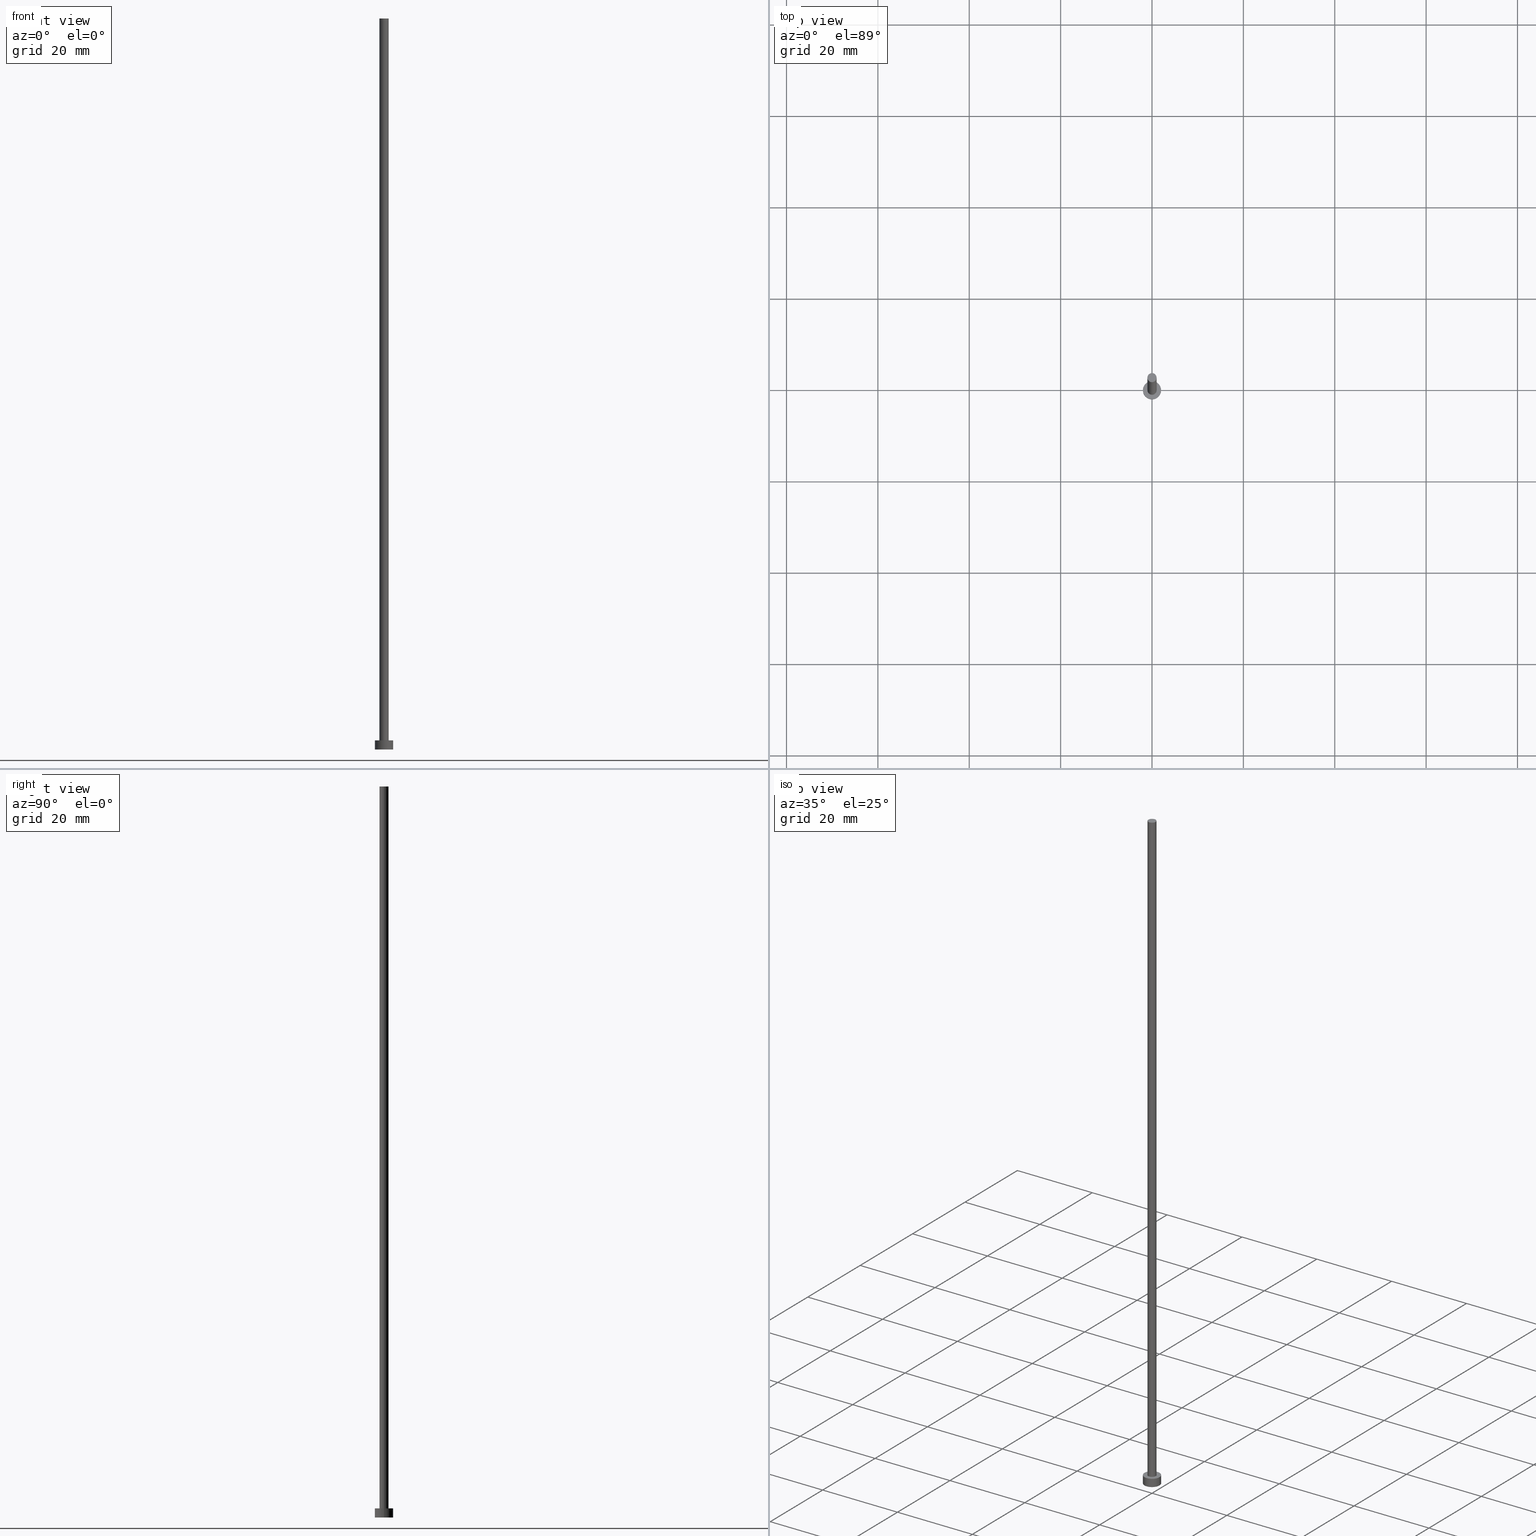
[diagram: canonical four-view strip — front | top / right | iso, engineering-drawing reading convention]
A machine part, canonical four-view strip (front | top / right | iso — engineering-drawing reading convention). The complete STEP part file that produces these views, byte-faithful:
ISO-10303-21;
HEADER;
FILE_DESCRIPTION (( 'STEP AP203' ),
    '1' );
FILE_NAME ('dfe2.STEP',
    '2023-02-13T14:55:46',
    ( '' ),
    ( '' ),
    'SwSTEP 2.0',
    'SolidWorks 2019',
    '' );
FILE_SCHEMA (( 'CONFIG_CONTROL_DESIGN' ));
ENDSEC;

DATA;
#1 = AXIS2_PLACEMENT_3D ( 'NONE', #243, #194, #80 ) ;
#2 = EDGE_CURVE ( 'NONE', #247, #150, #65, .T. ) ;
#3 = CARTESIAN_POINT ( 'NONE',  ( -1.000000000000000000, 0.000000000000000000, 160.0000000000000000 ) ) ;
#4 = EDGE_CURVE ( 'NONE', #66, #119, #205, .T. ) ;
#5 = ORIENTED_EDGE ( 'NONE', *, *, #13, .T. ) ;
#6 = DIRECTION ( 'NONE',  ( -1.000000000000000000, 0.000000000000000000, 0.000000000000000000 ) ) ;
#7 = PERSON_AND_ORGANIZATION_ROLE ( 'design_owner' ) ;
#8 = ADVANCED_FACE ( 'NONE', ( #12 ), #117, .T. ) ;
#9 = PERSON_AND_ORGANIZATION ( #94, #95 ) ;
#10 = EDGE_CURVE ( 'NONE', #150, #247, #121, .T. ) ;
#11 = VECTOR ( 'NONE', #214, 1000.000000000000000 ) ;
#12 = FACE_OUTER_BOUND ( 'NONE', #144, .T. ) ;
#13 = EDGE_CURVE ( 'NONE', #119, #66, #74, .T. ) ;
#14 = ORIENTED_EDGE ( 'NONE', *, *, #10, .F. ) ;
#15 = ORIENTED_EDGE ( 'NONE', *, *, #101, .T. ) ;
#16 = CARTESIAN_POINT ( 'NONE',  ( 0.000000000000000000, 0.000000000000000000, 2.000000000000000000 ) ) ;
#17 = EDGE_LOOP ( 'NONE', ( #18, #160 ) ) ;
#18 = ORIENTED_EDGE ( 'NONE', *, *, #251, .T. ) ;
#19 = CARTESIAN_POINT ( 'NONE',  ( -2.000000000000000000, 0.000000000000000000, 0.000000000000000000 ) ) ;
#20 = DIRECTION ( 'NONE',  ( 1.000000000000000000, 0.000000000000000000, -0.000000000000000000 ) ) ;
#21 = CC_DESIGN_APPROVAL ( #52, ( #35 ) ) ;
#22 = PLANE ( 'NONE',  #77 ) ;
#23 = EDGE_CURVE ( 'NONE', #119, #85, #122, .T. ) ;
#24 = CARTESIAN_POINT ( 'NONE',  ( 0.000000000000000000, 0.000000000000000000, 160.0000000000000000 ) ) ;
#25 = DIRECTION ( 'NONE',  ( 1.000000000000000000, 0.000000000000000000, -0.000000000000000000 ) ) ;
#26 = APPLICATION_CONTEXT ( 'configuration controlled 3d designs of mechanical parts and assemblies' ) ;
#27 = FACE_OUTER_BOUND ( 'NONE', #210, .T. ) ;
#28 = APPROVAL_ROLE ( '' ) ;
#29 = VECTOR ( 'NONE', #188, 1000.000000000000000 ) ;
#30 =( NAMED_UNIT ( * ) PLANE_ANGLE_UNIT ( ) SI_UNIT ( $, .RADIAN. ) );
#31 = EDGE_CURVE ( 'NONE', #41, #85, #173, .T. ) ;
#32 = PERSON_AND_ORGANIZATION_ROLE ( 'creator' ) ;
#33 = CC_DESIGN_PERSON_AND_ORGANIZATION_ASSIGNMENT ( #72, #7, ( #167 ) ) ;
#34 = COORDINATED_UNIVERSAL_TIME_OFFSET ( 1, 0, .AHEAD. ) ;
#35 = SECURITY_CLASSIFICATION ( '', '', #135 ) ;
#36 = EDGE_LOOP ( 'NONE', ( #14, #100 ) ) ;
#37 = DIRECTION ( 'NONE',  ( 1.000000000000000000, 0.000000000000000000, 0.000000000000000000 ) ) ;
#38 = DIRECTION ( 'NONE',  ( 1.000000000000000000, 0.000000000000000000, 0.000000000000000000 ) ) ;
#39 = APPROVAL ( #227, 'NEUR�EN�' ) ;
#40 = COORDINATED_UNIVERSAL_TIME_OFFSET ( 1, 0, .AHEAD. ) ;
#41 = VERTEX_POINT ( 'NONE', #19 ) ;
#42 = CARTESIAN_POINT ( 'NONE',  ( 0.000000000000000000, 0.000000000000000000, 2.000000000000000000 ) ) ;
#43 = ORIENTED_EDGE ( 'NONE', *, *, #2, .T. ) ;
#44 = DIRECTION ( 'NONE',  ( -1.000000000000000000, 0.000000000000000000, 0.000000000000000000 ) ) ;
#45 = CARTESIAN_POINT ( 'NONE',  ( 2.000000000000000000, 2.449293598294706414E-16, 2.000000000000000000 ) ) ;
#46 = ADVANCED_FACE ( 'NONE', ( #104 ), #178, .T. ) ;
#47 = FACE_OUTER_BOUND ( 'NONE', #161, .T. ) ;
#48 = CYLINDRICAL_SURFACE ( 'NONE', #125, 2.000000000000000000 ) ;
#49 = LOCAL_TIME ( 15, 55, 46.00000000000000000, #131 ) ;
#50 = COORDINATED_UNIVERSAL_TIME_OFFSET ( 1, 0, .AHEAD. ) ;
#51 = DIRECTION ( 'NONE',  ( 0.000000000000000000, 0.000000000000000000, 1.000000000000000000 ) ) ;
#52 = APPROVAL ( #61, 'NEUR�EN�' ) ;
#53 = PERSON_AND_ORGANIZATION_ROLE ( 'creator' ) ;
#54 = CLOSED_SHELL ( 'NONE', ( #8, #171, #90, #62, #179, #103, #46 ) ) ;
#55 = CALENDAR_DATE ( 2023, 13, 2 ) ;
#56 = FACE_BOUND ( 'NONE', #36, .T. ) ;
#57 = EDGE_CURVE ( 'NONE', #106, #139, #93, .T. ) ;
#58 = CC_DESIGN_SECURITY_CLASSIFICATION ( #35, ( #238 ) ) ;
#59 = ORIENTED_EDGE ( 'NONE', *, *, #123, .T. ) ;
#60 = AXIS2_PLACEMENT_3D ( 'NONE', #198, #200, #38 ) ;
#61 = APPROVAL_STATUS ( 'not_yet_approved' ) ;
#62 = ADVANCED_FACE ( 'NONE', ( #56, #137 ), #195, .T. ) ;
#63 = ORIENTED_EDGE ( 'NONE', *, *, #108, .T. ) ;
#64 = CARTESIAN_POINT ( 'NONE',  ( 0.000000000000000000, 0.000000000000000000, 2.000000000000000000 ) ) ;
#65 = CIRCLE ( 'NONE', #170, 1.000000000000000000 ) ;
#66 = VERTEX_POINT ( 'NONE', #245 ) ;
#67 = DIRECTION ( 'NONE',  ( 0.000000000000000000, 0.000000000000000000, 1.000000000000000000 ) ) ;
#68 = DIRECTION ( 'NONE',  ( -0.000000000000000000, -0.000000000000000000, -1.000000000000000000 ) ) ;
#69 = CIRCLE ( 'NONE', #147, 2.000000000000000000 ) ;
#70 = CYLINDRICAL_SURFACE ( 'NONE', #197, 2.000000000000000000 ) ;
#71 = CYLINDRICAL_SURFACE ( 'NONE', #189, 1.000000000000000000 ) ;
#72 = PERSON_AND_ORGANIZATION ( #94, #95 ) ;
#73 = APPROVAL_DATE_TIME ( #191, #39 ) ;
#74 = CIRCLE ( 'NONE', #142, 2.000000000000000000 ) ;
#75 = CC_DESIGN_PERSON_AND_ORGANIZATION_ASSIGNMENT ( #113, #192, ( #238 ) ) ;
#76 = APPROVAL_ROLE ( '' ) ;
#77 = AXIS2_PLACEMENT_3D ( 'NONE', #87, #67, #25 ) ;
#78 = APPROVAL_ROLE ( '' ) ;
#79 = COORDINATED_UNIVERSAL_TIME_OFFSET ( 1, 0, .AHEAD. ) ;
#80 = DIRECTION ( 'NONE',  ( -1.000000000000000000, 0.000000000000000000, 0.000000000000000000 ) ) ;
#81 = ORIENTED_EDGE ( 'NONE', *, *, #31, .F. ) ;
#82 = DIRECTION ( 'NONE',  ( 0.000000000000000000, 0.000000000000000000, 1.000000000000000000 ) ) ;
#83 = AXIS2_PLACEMENT_3D ( 'NONE', #16, #120, #97 ) ;
#84 = CC_DESIGN_DATE_AND_TIME_ASSIGNMENT ( #230, #181, ( #35 ) ) ;
#85 = VERTEX_POINT ( 'NONE', #233 ) ;
#86 = DIRECTION ( 'NONE',  ( -0.000000000000000000, -0.000000000000000000, -1.000000000000000000 ) ) ;
#87 = CARTESIAN_POINT ( 'NONE',  ( 0.000000000000000000, 0.000000000000000000, 0.000000000000000000 ) ) ;
#88 = APPLICATION_PROTOCOL_DEFINITION ( 'international standard', 'config_control_design', 1994, #26 ) ;
#89 = MECHANICAL_CONTEXT ( 'NONE', #127, 'mechanical' ) ;
#90 = ADVANCED_FACE ( 'NONE', ( #237 ), #70, .T. ) ;
#91 = CARTESIAN_POINT ( 'NONE',  ( 0.000000000000000000, 0.000000000000000000, 0.000000000000000000 ) ) ;
#92 = CARTESIAN_POINT ( 'NONE',  ( 0.000000000000000000, 0.000000000000000000, 2.000000000000000000 ) ) ;
#93 = CIRCLE ( 'NONE', #163, 1.000000000000000000 ) ;
#94 = PERSON ( 'NEUR�EN�', 'NEUR�EN�', 'NEUR�EN�', ('NEUR�EN�'), ('NEUR�EN�'), ('NEUR�EN�') ) ;
#95 = ORGANIZATION ( 'NEUR�EN�', 'NEUR�EN�', '' ) ;
#96 = ORIENTED_EDGE ( 'NONE', *, *, #123, .F. ) ;
#97 = DIRECTION ( 'NONE',  ( 1.000000000000000000, 0.000000000000000000, -0.000000000000000000 ) ) ;
#98 = CC_DESIGN_PERSON_AND_ORGANIZATION_ASSIGNMENT ( #9, #53, ( #199 ) ) ;
#99 = AXIS2_PLACEMENT_3D ( 'NONE', #92, #157, #114 ) ;
#100 = ORIENTED_EDGE ( 'NONE', *, *, #2, .F. ) ;
#101 = EDGE_CURVE ( 'NONE', #139, #150, #149, .T. ) ;
#102 = ORIENTED_EDGE ( 'NONE', *, *, #228, .F. ) ;
#103 = ADVANCED_FACE ( 'NONE', ( #27 ), #71, .T. ) ;
#104 = FACE_OUTER_BOUND ( 'NONE', #17, .T. ) ;
#105 = DIRECTION ( 'NONE',  ( 0.000000000000000000, 0.000000000000000000, 1.000000000000000000 ) ) ;
#106 = VERTEX_POINT ( 'NONE', #220 ) ;
#107 = DIRECTION ( 'NONE',  ( 0.000000000000000000, 0.000000000000000000, 1.000000000000000000 ) ) ;
#108 = EDGE_CURVE ( 'NONE', #85, #41, #69, .T. ) ;
#109 = CARTESIAN_POINT ( 'NONE',  ( 0.000000000000000000, 0.000000000000000000, 2.000000000000000000 ) ) ;
#110 =( LENGTH_UNIT ( ) NAMED_UNIT ( * ) SI_UNIT ( .MILLI., .METRE. ) );
#111 = CARTESIAN_POINT ( 'NONE',  ( 1.000000000000000000, 1.224646799147353207E-16, 160.0000000000000000 ) ) ;
#112 = CALENDAR_DATE ( 2023, 13, 2 ) ;
#113 = PERSON_AND_ORGANIZATION ( #94, #95 ) ;
#114 = DIRECTION ( 'NONE',  ( 1.000000000000000000, 0.000000000000000000, 0.000000000000000000 ) ) ;
#115 = VECTOR ( 'NONE', #86, 1000.000000000000000 ) ;
#116 = PERSON_AND_ORGANIZATION ( #94, #95 ) ;
#117 = CYLINDRICAL_SURFACE ( 'NONE', #1, 1.000000000000000000 ) ;
#118 = CC_DESIGN_APPROVAL ( #241, ( #238 ) ) ;
#119 = VERTEX_POINT ( 'NONE', #45 ) ;
#120 = DIRECTION ( 'NONE',  ( 0.000000000000000000, 0.000000000000000000, 1.000000000000000000 ) ) ;
#121 = CIRCLE ( 'NONE', #187, 1.000000000000000000 ) ;
#122 = LINE ( 'NONE', #162, #11 ) ;
#123 = EDGE_CURVE ( 'NONE', #106, #247, #145, .T. ) ;
#124 = CARTESIAN_POINT ( 'NONE',  ( -1.000000000000000000, 0.000000000000000000, 160.0000000000000000 ) ) ;
#125 = AXIS2_PLACEMENT_3D ( 'NONE', #109, #201, #234 ) ;
#126 = DIRECTION ( 'NONE',  ( 0.000000000000000000, 0.000000000000000000, 1.000000000000000000 ) ) ;
#127 = APPLICATION_CONTEXT ( 'configuration controlled 3d designs of mechanical parts and assemblies' ) ;
#128 = CC_DESIGN_PERSON_AND_ORGANIZATION_ASSIGNMENT ( #116, #176, ( #35 ) ) ;
#129 = DIRECTION ( 'NONE',  ( -0.000000000000000000, -0.000000000000000000, -1.000000000000000000 ) ) ;
#130 = LOCAL_TIME ( 15, 55, 46.00000000000000000, #34 ) ;
#131 = COORDINATED_UNIVERSAL_TIME_OFFSET ( 1, 0, .AHEAD. ) ;
#132 = DIRECTION ( 'NONE',  ( 1.000000000000000000, 0.000000000000000000, 0.000000000000000000 ) ) ;
#133 = LOCAL_TIME ( 15, 55, 46.00000000000000000, #50 ) ;
#134 = DATE_AND_TIME ( #239, #130 ) ;
#135 = SECURITY_CLASSIFICATION_LEVEL ( 'unclassified' ) ;
#136 = PRODUCT_RELATED_PRODUCT_CATEGORY ( 'detail', '', ( #167 ) ) ;
#137 = FACE_OUTER_BOUND ( 'NONE', #185, .T. ) ;
#138 = LOCAL_TIME ( 15, 55, 46.00000000000000000, #40 ) ;
#139 = VERTEX_POINT ( 'NONE', #3 ) ;
#140 = APPROVAL_DATE_TIME ( #248, #52 ) ;
#141 = CARTESIAN_POINT ( 'NONE',  ( 0.000000000000000000, 0.000000000000000000, 2.000000000000000000 ) ) ;
#142 = AXIS2_PLACEMENT_3D ( 'NONE', #42, #82, #37 ) ;
#143 = AXIS2_PLACEMENT_3D ( 'NONE', #24, #126, #255 ) ;
#144 = EDGE_LOOP ( 'NONE', ( #216, #59, #43, #177 ) ) ;
#145 = LINE ( 'NONE', #111, #29 ) ;
#146 = LINE ( 'NONE', #186, #159 ) ;
#147 = AXIS2_PLACEMENT_3D ( 'NONE', #219, #107, #166 ) ;
#148 = EDGE_LOOP ( 'NONE', ( #253, #218, #229, #196 ) ) ;
#149 = LINE ( 'NONE', #124, #115 ) ;
#150 = VERTEX_POINT ( 'NONE', #222 ) ;
#151 = DIRECTION ( 'NONE',  ( 0.000000000000000000, 0.000000000000000000, 1.000000000000000000 ) ) ;
#152 = APPROVAL_PERSON_ORGANIZATION ( #172, #39, #28 ) ;
#153 = PERSON_AND_ORGANIZATION ( #94, #95 ) ;
#154 = CARTESIAN_POINT ( 'NONE',  ( 0.000000000000000000, 0.000000000000000000, 2.000000000000000000 ) ) ;
#155 = ADVANCED_BREP_SHAPE_REPRESENTATION ( 'dfe2', ( #175, #174 ), #235 ) ;
#156 = CALENDAR_DATE ( 2023, 13, 2 ) ;
#157 = DIRECTION ( 'NONE',  ( 0.000000000000000000, 0.000000000000000000, 1.000000000000000000 ) ) ;
#158 =( NAMED_UNIT ( * ) SI_UNIT ( $, .STERADIAN. ) SOLID_ANGLE_UNIT ( ) );
#159 = VECTOR ( 'NONE', #129, 1000.000000000000000 ) ;
#160 = ORIENTED_EDGE ( 'NONE', *, *, #57, .T. ) ;
#161 = EDGE_LOOP ( 'NONE', ( #81, #244 ) ) ;
#162 = CARTESIAN_POINT ( 'NONE',  ( 2.000000000000000000, 2.449293598294706414E-16, 2.000000000000000000 ) ) ;
#163 = AXIS2_PLACEMENT_3D ( 'NONE', #211, #105, #250 ) ;
#164 = APPROVAL_PERSON_ORGANIZATION ( #153, #241, #76 ) ;
#165 = EDGE_LOOP ( 'NONE', ( #193, #180, #63, #102 ) ) ;
#166 = DIRECTION ( 'NONE',  ( 1.000000000000000000, 0.000000000000000000, 0.000000000000000000 ) ) ;
#167 = PRODUCT ( 'dfe2', 'dfe2', '', ( #89 ) ) ;
#168 = CC_DESIGN_PERSON_AND_ORGANIZATION_ASSIGNMENT ( #207, #32, ( #238 ) ) ;
#169 = FACE_OUTER_BOUND ( 'NONE', #165, .T. ) ;
#170 = AXIS2_PLACEMENT_3D ( 'NONE', #154, #51, #132 ) ;
#171 = ADVANCED_FACE ( 'NONE', ( #169 ), #48, .T. ) ;
#172 = PERSON_AND_ORGANIZATION ( #94, #95 ) ;
#173 = CIRCLE ( 'NONE', #60, 2.000000000000000000 ) ;
#174 = AXIS2_PLACEMENT_3D ( 'NONE', #91, #151, #206 ) ;
#175 = MANIFOLD_SOLID_BREP ( 'P�idat vysunut�m3', #54 ) ;
#176 = PERSON_AND_ORGANIZATION_ROLE ( 'classification_officer' ) ;
#177 = ORIENTED_EDGE ( 'NONE', *, *, #101, .F. ) ;
#178 = PLANE ( 'NONE',  #203 ) ;
#179 = ADVANCED_FACE ( 'NONE', ( #47 ), #22, .F. ) ;
#180 = ORIENTED_EDGE ( 'NONE', *, *, #23, .T. ) ;
#181 = DATE_TIME_ROLE ( 'classification_date' ) ;
#182 = UNCERTAINTY_MEASURE_WITH_UNIT (LENGTH_MEASURE( 1.000000000000000082E-05 ), #110, 'distance_accuracy_value', 'NONE');
#183 = CARTESIAN_POINT ( 'NONE',  ( 0.000000000000000000, 0.000000000000000000, 160.0000000000000000 ) ) ;
#184 = APPROVAL_PERSON_ORGANIZATION ( #209, #52, #78 ) ;
#185 = EDGE_LOOP ( 'NONE', ( #232, #5 ) ) ;
#186 = CARTESIAN_POINT ( 'NONE',  ( -2.000000000000000000, 0.000000000000000000, 2.000000000000000000 ) ) ;
#187 = AXIS2_PLACEMENT_3D ( 'NONE', #141, #217, #213 ) ;
#188 = DIRECTION ( 'NONE',  ( -0.000000000000000000, -0.000000000000000000, -1.000000000000000000 ) ) ;
#189 = AXIS2_PLACEMENT_3D ( 'NONE', #254, #202, #6 ) ;
#190 = CC_DESIGN_DATE_AND_TIME_ASSIGNMENT ( #134, #242, ( #199 ) ) ;
#191 = DATE_AND_TIME ( #112, #133 ) ;
#192 = PERSON_AND_ORGANIZATION_ROLE ( 'design_supplier' ) ;
#193 = ORIENTED_EDGE ( 'NONE', *, *, #13, .F. ) ;
#194 = DIRECTION ( 'NONE',  ( -0.000000000000000000, -0.000000000000000000, -1.000000000000000000 ) ) ;
#195 = PLANE ( 'NONE',  #83 ) ;
#196 = ORIENTED_EDGE ( 'NONE', *, *, #31, .T. ) ;
#197 = AXIS2_PLACEMENT_3D ( 'NONE', #64, #68, #44 ) ;
#198 = CARTESIAN_POINT ( 'NONE',  ( 0.000000000000000000, 0.000000000000000000, 0.000000000000000000 ) ) ;
#199 = PRODUCT_DEFINITION ( 'NEZN�M�', '', #238, #236 ) ;
#200 = DIRECTION ( 'NONE',  ( 0.000000000000000000, 0.000000000000000000, 1.000000000000000000 ) ) ;
#201 = DIRECTION ( 'NONE',  ( -0.000000000000000000, -0.000000000000000000, -1.000000000000000000 ) ) ;
#202 = DIRECTION ( 'NONE',  ( -0.000000000000000000, -0.000000000000000000, -1.000000000000000000 ) ) ;
#203 = AXIS2_PLACEMENT_3D ( 'NONE', #183, #249, #20 ) ;
#204 = CARTESIAN_POINT ( 'NONE',  ( 1.000000000000000000, 1.224646799147353207E-16, 2.000000000000000000 ) ) ;
#205 = CIRCLE ( 'NONE', #99, 2.000000000000000000 ) ;
#206 = DIRECTION ( 'NONE',  ( 1.000000000000000000, 0.000000000000000000, 0.000000000000000000 ) ) ;
#207 = PERSON_AND_ORGANIZATION ( #94, #95 ) ;
#208 = DATE_AND_TIME ( #156, #49 ) ;
#209 = PERSON_AND_ORGANIZATION ( #94, #95 ) ;
#210 = EDGE_LOOP ( 'NONE', ( #96, #240, #15, #221 ) ) ;
#211 = CARTESIAN_POINT ( 'NONE',  ( 0.000000000000000000, 0.000000000000000000, 160.0000000000000000 ) ) ;
#212 = SHAPE_DEFINITION_REPRESENTATION ( #224, #155 ) ;
#213 = DIRECTION ( 'NONE',  ( 1.000000000000000000, 0.000000000000000000, 0.000000000000000000 ) ) ;
#214 = DIRECTION ( 'NONE',  ( -0.000000000000000000, -0.000000000000000000, -1.000000000000000000 ) ) ;
#215 = CIRCLE ( 'NONE', #143, 1.000000000000000000 ) ;
#216 = ORIENTED_EDGE ( 'NONE', *, *, #57, .F. ) ;
#217 = DIRECTION ( 'NONE',  ( 0.000000000000000000, 0.000000000000000000, 1.000000000000000000 ) ) ;
#218 = ORIENTED_EDGE ( 'NONE', *, *, #4, .F. ) ;
#219 = CARTESIAN_POINT ( 'NONE',  ( 0.000000000000000000, 0.000000000000000000, 0.000000000000000000 ) ) ;
#220 = CARTESIAN_POINT ( 'NONE',  ( 1.000000000000000000, 1.224646799147353207E-16, 160.0000000000000000 ) ) ;
#221 = ORIENTED_EDGE ( 'NONE', *, *, #10, .T. ) ;
#222 = CARTESIAN_POINT ( 'NONE',  ( -1.000000000000000000, 0.000000000000000000, 2.000000000000000000 ) ) ;
#223 = APPLICATION_PROTOCOL_DEFINITION ( 'international standard', 'config_control_design', 1994, #127 ) ;
#224 = PRODUCT_DEFINITION_SHAPE ( 'NONE', 'NONE',  #199 ) ;
#225 = APPROVAL_STATUS ( 'not_yet_approved' ) ;
#226 = APPROVAL_DATE_TIME ( #208, #241 ) ;
#227 = APPROVAL_STATUS ( 'not_yet_approved' ) ;
#228 = EDGE_CURVE ( 'NONE', #66, #41, #146, .T. ) ;
#229 = ORIENTED_EDGE ( 'NONE', *, *, #228, .T. ) ;
#230 = DATE_AND_TIME ( #246, #252 ) ;
#231 = CC_DESIGN_APPROVAL ( #39, ( #199 ) ) ;
#232 = ORIENTED_EDGE ( 'NONE', *, *, #4, .T. ) ;
#233 = CARTESIAN_POINT ( 'NONE',  ( 2.000000000000000000, 2.449293598294706414E-16, 0.000000000000000000 ) ) ;
#234 = DIRECTION ( 'NONE',  ( -1.000000000000000000, 0.000000000000000000, 0.000000000000000000 ) ) ;
#235 =( GEOMETRIC_REPRESENTATION_CONTEXT ( 3 ) GLOBAL_UNCERTAINTY_ASSIGNED_CONTEXT ( ( #182 ) ) GLOBAL_UNIT_ASSIGNED_CONTEXT ( ( #110, #30, #158 ) ) REPRESENTATION_CONTEXT ( 'NONE', 'WORKASPACE' ) );
#236 = DESIGN_CONTEXT ( 'detailed design', #26, 'design' ) ;
#237 = FACE_OUTER_BOUND ( 'NONE', #148, .T. ) ;
#238 = PRODUCT_DEFINITION_FORMATION_WITH_SPECIFIED_SOURCE ( 'LIBOVOLN�', '', #167, .NOT_KNOWN. ) ;
#239 = CALENDAR_DATE ( 2023, 13, 2 ) ;
#240 = ORIENTED_EDGE ( 'NONE', *, *, #251, .F. ) ;
#241 = APPROVAL ( #225, 'NEUR�EN�' ) ;
#242 = DATE_TIME_ROLE ( 'creation_date' ) ;
#243 = CARTESIAN_POINT ( 'NONE',  ( 0.000000000000000000, 0.000000000000000000, 160.0000000000000000 ) ) ;
#244 = ORIENTED_EDGE ( 'NONE', *, *, #108, .F. ) ;
#245 = CARTESIAN_POINT ( 'NONE',  ( -2.000000000000000000, 0.000000000000000000, 2.000000000000000000 ) ) ;
#246 = CALENDAR_DATE ( 2023, 13, 2 ) ;
#247 = VERTEX_POINT ( 'NONE', #204 ) ;
#248 = DATE_AND_TIME ( #55, #138 ) ;
#249 = DIRECTION ( 'NONE',  ( 0.000000000000000000, 0.000000000000000000, 1.000000000000000000 ) ) ;
#250 = DIRECTION ( 'NONE',  ( 1.000000000000000000, 0.000000000000000000, 0.000000000000000000 ) ) ;
#251 = EDGE_CURVE ( 'NONE', #139, #106, #215, .T. ) ;
#252 = LOCAL_TIME ( 15, 55, 46.00000000000000000, #79 ) ;
#253 = ORIENTED_EDGE ( 'NONE', *, *, #23, .F. ) ;
#254 = CARTESIAN_POINT ( 'NONE',  ( 0.000000000000000000, 0.000000000000000000, 160.0000000000000000 ) ) ;
#255 = DIRECTION ( 'NONE',  ( 1.000000000000000000, 0.000000000000000000, 0.000000000000000000 ) ) ;
ENDSEC;
END-ISO-10303-21;
